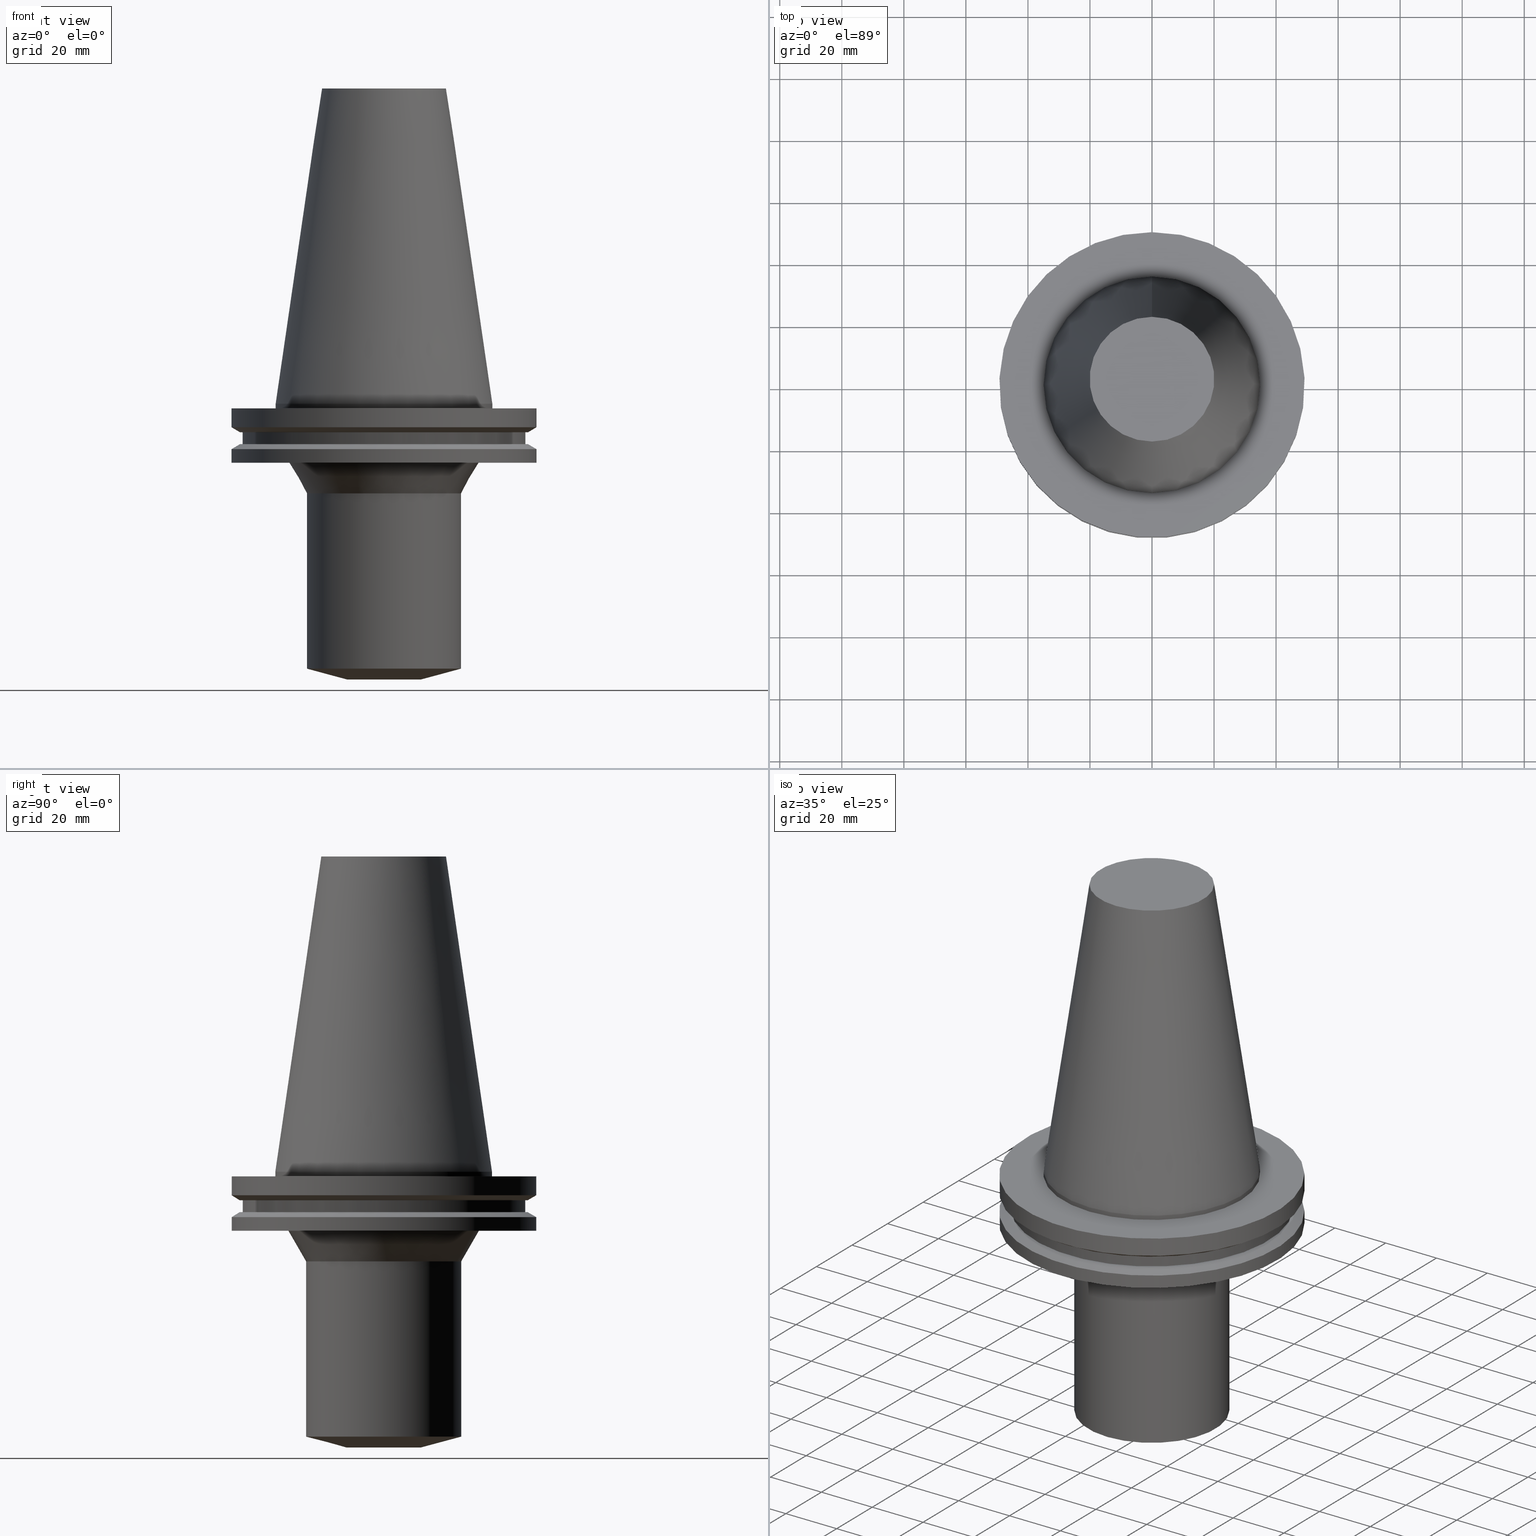
[diagram: canonical four-view strip — front | top / right | iso, engineering-drawing reading convention]
A machine part, canonical four-view strip (front | top / right | iso — engineering-drawing reading convention). The complete STEP part file that produces these views, byte-faithful:
ISO-10303-21;
HEADER;
FILE_DESCRIPTION((''),'1');
FILE_NAME('V:/01_Dxf_Field-HP\X2\FF71FF6FFF8CFF9F5916\X0\2013/BIGKAISER\X2\FF76FF80FF9BFF78FF9E63B28F095206\X0\_BKUS_201803/BCV50Y-BSL/BCV50Y-BSL.750-3.5.stp','2018-03-13T06:34:36',(''),(''),'Spatial Interop R21 SP3','Kubotek KeyCreator 2011 V10.0.2 (22737)',' ');
FILE_SCHEMA(('automotive_design'));
ENDSEC;
DATA;
#1=MECHANICAL_DESIGN_GEOMETRIC_PRESENTATION_REPRESENTATION(' ',(#10,#11,#12,#13,#14,#15,#16,#17,#18,#19,#20,#21,#22,#23,#24,#25,#26,#27,#28,#29,#30,#31,#32,#33,#34,#35,#36,#37,#38,#39,#40,#41),#6);
#2=PRODUCT_DEFINITION_CONTEXT('',#42,'design');
#3=APPLICATION_PROTOCOL_DEFINITION('INTERNATIONAL STANDARD','automotive_design',1994,#42);
#4=PRODUCT_CATEGORY_RELATIONSHIP('NONE','NONE',#43,#44);
#5=SHAPE_DEFINITION_REPRESENTATION(#45,#46);
#6= (GEOMETRIC_REPRESENTATION_CONTEXT(3)GLOBAL_UNCERTAINTY_ASSIGNED_CONTEXT((#49))GLOBAL_UNIT_ASSIGNED_CONTEXT((#51,#52,#53))REPRESENTATION_CONTEXT('NONE','WORKSPACE'));
#10=STYLED_ITEM('',(#55,#56),#57);
#11=STYLED_ITEM('',(#58),#59);
#12=STYLED_ITEM('',(#60),#61);
#13=STYLED_ITEM('',(#62,#63),#64);
#14=STYLED_ITEM('',(#65),#66);
#15=STYLED_ITEM('',(#67),#68);
#16=STYLED_ITEM('',(#69),#70);
#17=STYLED_ITEM('',(#71,#72),#73);
#18=STYLED_ITEM('',(#74,#75),#76);
#19=STYLED_ITEM('',(#77),#78);
#20=STYLED_ITEM('',(#79),#80);
#21=STYLED_ITEM('',(#81,#82),#83);
#22=STYLED_ITEM('',(#84,#85),#86);
#23=STYLED_ITEM('',(#87,#88),#89);
#24=STYLED_ITEM('',(#90,#91),#92);
#25=STYLED_ITEM('',(#93,#94),#95);
#26=STYLED_ITEM('',(#96,#97),#98);
#27=STYLED_ITEM('',(#99),#100);
#28=STYLED_ITEM('',(#101),#102);
#29=STYLED_ITEM('',(#103,#104),#105);
#30=STYLED_ITEM('',(#106,#107),#108);
#31=STYLED_ITEM('',(#109,#110),#111);
#32=STYLED_ITEM('',(#112,#113),#114);
#33=STYLED_ITEM('',(#115,#116),#117);
#34=STYLED_ITEM('',(#118,#119),#120);
#35=STYLED_ITEM('',(#121),#122);
#36=STYLED_ITEM('',(#123),#124);
#37=STYLED_ITEM('',(#125,#126),#127);
#38=STYLED_ITEM('',(#128),#129);
#39=STYLED_ITEM('',(#130),#131);
#40=STYLED_ITEM('',(#132),#133);
#41=STYLED_ITEM('',(#134),#135);
#42=APPLICATION_CONTEXT(' ');
#43=PRODUCT_CATEGORY('part','NONE');
#44=PRODUCT_RELATED_PRODUCT_CATEGORY('detail',' ',(#136));
#45=PRODUCT_DEFINITION_SHAPE('NONE','NONE',#137);
#46=ADVANCED_BREP_SHAPE_REPRESENTATION('Unnamed[1]',(#86,#138),#6);
#49=UNCERTAINTY_MEASURE_WITH_UNIT(LENGTH_MEASURE(1.0E-006),#51,'','');
#51= (CONVERSION_BASED_UNIT('MILLIMETRE',#141)LENGTH_UNIT()NAMED_UNIT(#144));
#52= (NAMED_UNIT(#146)PLANE_ANGLE_UNIT()SI_UNIT($,.RADIAN.));
#53= (NAMED_UNIT(#146)SOLID_ANGLE_UNIT()SI_UNIT($,.STERADIAN.));
#55=PRESENTATION_STYLE_ASSIGNMENT((#152));
#56=PRESENTATION_STYLE_ASSIGNMENT((#153));
#57=ADVANCED_FACE('Unnamed[1]',(#154,#155),#156,.T.);
#58=PRESENTATION_STYLE_ASSIGNMENT((#157));
#59=EDGE_CURVE('Unnamed[1]',#158,#158,#159,.T.);
#60=PRESENTATION_STYLE_ASSIGNMENT((#160));
#61=EDGE_CURVE('Unnamed[1]',#161,#161,#162,.T.);
#62=PRESENTATION_STYLE_ASSIGNMENT((#163));
#63=PRESENTATION_STYLE_ASSIGNMENT((#164));
#64=ADVANCED_FACE('Unnamed[1]',(#165,#166),#167,.T.);
#65=PRESENTATION_STYLE_ASSIGNMENT((#168));
#66=EDGE_CURVE('Unnamed[1]',#169,#169,#170,.T.);
#67=PRESENTATION_STYLE_ASSIGNMENT((#171));
#68=EDGE_CURVE('Unnamed[1]',#172,#172,#173,.T.);
#69=PRESENTATION_STYLE_ASSIGNMENT((#174));
#70=EDGE_CURVE('Unnamed[1]',#175,#175,#176,.T.);
#71=PRESENTATION_STYLE_ASSIGNMENT((#177));
#72=PRESENTATION_STYLE_ASSIGNMENT((#178));
#73=ADVANCED_FACE('Unnamed[1]',(#179,#180),#181,.T.);
#74=PRESENTATION_STYLE_ASSIGNMENT((#182));
#75=PRESENTATION_STYLE_ASSIGNMENT((#183));
#76=ADVANCED_FACE('Unnamed[1]',(#184),#185,.T.);
#77=PRESENTATION_STYLE_ASSIGNMENT((#186));
#78=EDGE_CURVE('Unnamed[1]',#187,#187,#188,.T.);
#79=PRESENTATION_STYLE_ASSIGNMENT((#189));
#80=EDGE_CURVE('Unnamed[1]',#190,#190,#191,.T.);
#81=PRESENTATION_STYLE_ASSIGNMENT((#192));
#82=PRESENTATION_STYLE_ASSIGNMENT((#193));
#83=ADVANCED_FACE('Unnamed[1]',(#194,#195),#196,.T.);
#84=PRESENTATION_STYLE_ASSIGNMENT((#197));
#85=PRESENTATION_STYLE_ASSIGNMENT((#198));
#86=MANIFOLD_SOLID_BREP('Unnamed[1]',#199);
#87=PRESENTATION_STYLE_ASSIGNMENT((#200));
#88=PRESENTATION_STYLE_ASSIGNMENT((#201));
#89=ADVANCED_FACE('Unnamed[1]',(#202,#203),#204,.T.);
#90=PRESENTATION_STYLE_ASSIGNMENT((#205));
#91=PRESENTATION_STYLE_ASSIGNMENT((#206));
#92=ADVANCED_FACE('Unnamed[1]',(#207,#208),#209,.T.);
#93=PRESENTATION_STYLE_ASSIGNMENT((#210));
#94=PRESENTATION_STYLE_ASSIGNMENT((#211));
#95=ADVANCED_FACE('Unnamed[1]',(#212,#213),#214,.T.);
#96=PRESENTATION_STYLE_ASSIGNMENT((#215));
#97=PRESENTATION_STYLE_ASSIGNMENT((#216));
#98=ADVANCED_FACE('Unnamed[1]',(#217,#218),#219,.T.);
#99=PRESENTATION_STYLE_ASSIGNMENT((#220));
#100=EDGE_CURVE('Unnamed[1]',#221,#221,#222,.T.);
#101=PRESENTATION_STYLE_ASSIGNMENT((#223));
#102=EDGE_CURVE('Unnamed[1]',#224,#224,#225,.T.);
#103=PRESENTATION_STYLE_ASSIGNMENT((#226));
#104=PRESENTATION_STYLE_ASSIGNMENT((#227));
#105=ADVANCED_FACE('Unnamed[1]',(#228,#229),#230,.T.);
#106=PRESENTATION_STYLE_ASSIGNMENT((#231));
#107=PRESENTATION_STYLE_ASSIGNMENT((#232));
#108=ADVANCED_FACE('Unnamed[1]',(#233,#234),#235,.T.);
#109=PRESENTATION_STYLE_ASSIGNMENT((#236));
#110=PRESENTATION_STYLE_ASSIGNMENT((#237));
#111=ADVANCED_FACE('Unnamed[1]',(#238,#239),#240,.T.);
#112=PRESENTATION_STYLE_ASSIGNMENT((#241));
#113=PRESENTATION_STYLE_ASSIGNMENT((#242));
#114=ADVANCED_FACE('Unnamed[1]',(#243,#244),#245,.T.);
#115=PRESENTATION_STYLE_ASSIGNMENT((#246));
#116=PRESENTATION_STYLE_ASSIGNMENT((#247));
#117=ADVANCED_FACE('Unnamed[1]',(#248,#249),#250,.T.);
#118=PRESENTATION_STYLE_ASSIGNMENT((#251));
#119=PRESENTATION_STYLE_ASSIGNMENT((#252));
#120=ADVANCED_FACE('Unnamed[1]',(#253,#254),#255,.T.);
#121=PRESENTATION_STYLE_ASSIGNMENT((#256));
#122=EDGE_CURVE('Unnamed[1]',#257,#257,#258,.T.);
#123=PRESENTATION_STYLE_ASSIGNMENT((#259));
#124=EDGE_CURVE('Unnamed[1]',#260,#260,#261,.T.);
#125=PRESENTATION_STYLE_ASSIGNMENT((#262));
#126=PRESENTATION_STYLE_ASSIGNMENT((#263));
#127=ADVANCED_FACE('Unnamed[1]',(#264),#265,.T.);
#128=PRESENTATION_STYLE_ASSIGNMENT((#266));
#129=EDGE_CURVE('Unnamed[1]',#267,#267,#268,.T.);
#130=PRESENTATION_STYLE_ASSIGNMENT((#269));
#131=EDGE_CURVE('Unnamed[1]',#270,#270,#271,.T.);
#132=PRESENTATION_STYLE_ASSIGNMENT((#272));
#133=EDGE_CURVE('Unnamed[1]',#273,#273,#274,.T.);
#134=PRESENTATION_STYLE_ASSIGNMENT((#275));
#135=EDGE_CURVE('Unnamed[1]',#276,#276,#277,.T.);
#136=PRODUCT('Unnamed[1]','Unnamed[1]','PART-Unnamed[1]-DESC',(#278));
#137=PRODUCT_DEFINITION('NONE','NONE',#279,#2);
#138=AXIS2_PLACEMENT_3D('',#280,#281,#282);
#141=LENGTH_MEASURE_WITH_UNIT(LENGTH_MEASURE(1.0),#283);
#144=DIMENSIONAL_EXPONENTS(1.0,0.0,0.0,0.0,0.0,0.0,0.0);
#146=DIMENSIONAL_EXPONENTS(0.0,0.0,0.0,0.0,0.0,0.0,0.0);
#152=SURFACE_STYLE_USAGE(.BOTH.,#284);
#153=CURVE_STYLE('',#285,POSITIVE_LENGTH_MEASURE(1000.0),#286);
#154=FACE_BOUND('',#287,.T.);
#155=FACE_BOUND('',#288,.T.);
#156=CONICAL_SURFACE('',#289,18.4999999999988,1.30899693899575);
#157=CURVE_STYLE('',#290,POSITIVE_LENGTH_MEASURE(1000.0),#291);
#158=VERTEX_POINT('',#292);
#159=CIRCLE('',#293,20.1083333297217);
#160=CURVE_STYLE('',#294,POSITIVE_LENGTH_MEASURE(1000.0),#295);
#161=VERTEX_POINT('',#296);
#162=CIRCLE('',#297,49.2125);
#163=SURFACE_STYLE_USAGE(.BOTH.,#298);
#164=CURVE_STYLE('',#299,POSITIVE_LENGTH_MEASURE(1000.0),#300);
#165=FACE_BOUND('',#301,.T.);
#166=FACE_OUTER_BOUND('',#302,.T.);
#167=PLANE('',#303);
#168=CURVE_STYLE('',#304,POSITIVE_LENGTH_MEASURE(1000.0),#305);
#169=VERTEX_POINT('',#306);
#170=CIRCLE('',#307,46.43053755);
#171=CURVE_STYLE('',#308,POSITIVE_LENGTH_MEASURE(1000.0),#309);
#172=VERTEX_POINT('',#310);
#173=CIRCLE('',#311,45.645);
#174=CURVE_STYLE('',#312,POSITIVE_LENGTH_MEASURE(1000.0),#313);
#175=VERTEX_POINT('',#314);
#176=CIRCLE('',#315,46.43053755);
#177=SURFACE_STYLE_USAGE(.BOTH.,#316);
#178=CURVE_STYLE('',#317,POSITIVE_LENGTH_MEASURE(1000.0),#318);
#179=FACE_BOUND('',#319,.T.);
#180=FACE_BOUND('',#320,.T.);
#181=CONICAL_SURFACE('',#321,27.5166666648609,0.144812498273746);
#182=SURFACE_STYLE_USAGE(.BOTH.,#322);
#183=CURVE_STYLE('',#323,POSITIVE_LENGTH_MEASURE(1000.0),#324);
#184=FACE_OUTER_BOUND('',#325,.T.);
#185=PLANE('',#326);
#186=CURVE_STYLE('',#327,POSITIVE_LENGTH_MEASURE(1000.0),#328);
#187=VERTEX_POINT('',#329);
#188=CIRCLE('',#330,49.2125);
#189=CURVE_STYLE('',#331,POSITIVE_LENGTH_MEASURE(1000.0),#332);
#190=VERTEX_POINT('',#333);
#191=CIRCLE('',#334,11.9999999999879);
#192=SURFACE_STYLE_USAGE(.BOTH.,#335);
#193=CURVE_STYLE('',#336,POSITIVE_LENGTH_MEASURE(1000.0),#337);
#194=FACE_BOUND('',#338,.T.);
#195=FACE_BOUND('',#339,.T.);
#196=CYLINDRICAL_SURFACE('',#340,45.645);
#197=SURFACE_STYLE_USAGE(.BOTH.,#341);
#198=CURVE_STYLE('',#342,POSITIVE_LENGTH_MEASURE(1000.0),#343);
#199=CLOSED_SHELL('',(#76,#73,#117,#89,#95,#120,#64,#83,#105,#111,#92,#98,#108,#114,#57,#127));
#200=SURFACE_STYLE_USAGE(.BOTH.,#344);
#201=CURVE_STYLE('',#345,POSITIVE_LENGTH_MEASURE(1000.0),#346);
#202=FACE_OUTER_BOUND('',#347,.T.);
#203=FACE_BOUND('',#348,.T.);
#204=PLANE('',#349);
#205=SURFACE_STYLE_USAGE(.BOTH.,#350);
#206=CURVE_STYLE('',#351,POSITIVE_LENGTH_MEASURE(1000.0),#352);
#207=FACE_BOUND('',#353,.T.);
#208=FACE_BOUND('',#354,.T.);
#209=CYLINDRICAL_SURFACE('',#355,49.2125);
#210=SURFACE_STYLE_USAGE(.BOTH.,#356);
#211=CURVE_STYLE('',#357,POSITIVE_LENGTH_MEASURE(1000.0),#358);
#212=FACE_BOUND('',#359,.T.);
#213=FACE_BOUND('',#360,.T.);
#214=CYLINDRICAL_SURFACE('',#361,49.2125);
#215=SURFACE_STYLE_USAGE(.BOTH.,#362);
#216=CURVE_STYLE('',#363,POSITIVE_LENGTH_MEASURE(1000.0),#364);
#217=FACE_BOUND('',#365,.T.);
#218=FACE_OUTER_BOUND('',#366,.T.);
#219=PLANE('',#367);
#220=CURVE_STYLE('',#368,POSITIVE_LENGTH_MEASURE(1000.0),#369);
#221=VERTEX_POINT('',#370);
#222=CIRCLE('',#371,34.925);
#223=CURVE_STYLE('',#372,POSITIVE_LENGTH_MEASURE(1000.0),#373);
#224=VERTEX_POINT('',#374);
#225=CIRCLE('',#375,34.925);
#226=SURFACE_STYLE_USAGE(.BOTH.,#376);
#227=CURVE_STYLE('',#377,POSITIVE_LENGTH_MEASURE(1000.0),#378);
#228=FACE_OUTER_BOUND('',#379,.T.);
#229=FACE_BOUND('',#380,.T.);
#230=PLANE('',#381);
#231=SURFACE_STYLE_USAGE(.BOTH.,#382);
#232=CURVE_STYLE('',#383,POSITIVE_LENGTH_MEASURE(1000.0),#384);
#233=FACE_BOUND('',#385,.T.);
#234=FACE_BOUND('',#386,.T.);
#235=CONICAL_SURFACE('',#387,27.8434500757615,0.523598775598437);
#236=SURFACE_STYLE_USAGE(.BOTH.,#388);
#237=CURVE_STYLE('',#389,POSITIVE_LENGTH_MEASURE(1000.0),#390);
#238=FACE_BOUND('',#391,.T.);
#239=FACE_BOUND('',#392,.T.);
#240=CONICAL_SURFACE('',#393,47.821518775,1.04719755103023);
#241=SURFACE_STYLE_USAGE(.BOTH.,#394);
#242=CURVE_STYLE('',#395,POSITIVE_LENGTH_MEASURE(1000.0),#396);
#243=FACE_BOUND('',#397,.T.);
#244=FACE_BOUND('',#398,.T.);
#245=CYLINDRICAL_SURFACE('',#399,25.000000000009);
#246=SURFACE_STYLE_USAGE(.BOTH.,#400);
#247=CURVE_STYLE('',#401,POSITIVE_LENGTH_MEASURE(1000.0),#402);
#248=FACE_BOUND('',#403,.T.);
#249=FACE_BOUND('',#404,.T.);
#250=CYLINDRICAL_SURFACE('',#405,34.925);
#251=SURFACE_STYLE_USAGE(.BOTH.,#406);
#252=CURVE_STYLE('',#407,POSITIVE_LENGTH_MEASURE(1000.0),#408);
#253=FACE_BOUND('',#409,.T.);
#254=FACE_BOUND('',#410,.T.);
#255=CONICAL_SURFACE('',#411,47.821518775,1.04719755103024);
#256=CURVE_STYLE('',#412,POSITIVE_LENGTH_MEASURE(1000.0),#413);
#257=VERTEX_POINT('',#414);
#258=CIRCLE('',#415,49.2125);
#259=CURVE_STYLE('',#416,POSITIVE_LENGTH_MEASURE(1000.0),#417);
#260=VERTEX_POINT('',#418);
#261=CIRCLE('',#419,30.6869001515146);
#262=SURFACE_STYLE_USAGE(.BOTH.,#420);
#263=CURVE_STYLE('',#421,POSITIVE_LENGTH_MEASURE(1000.0),#422);
#264=FACE_OUTER_BOUND('',#423,.T.);
#265=PLANE('',#424);
#266=CURVE_STYLE('',#425,POSITIVE_LENGTH_MEASURE(1000.0),#426);
#267=VERTEX_POINT('',#427);
#268=CIRCLE('',#428,49.2125);
#269=CURVE_STYLE('',#429,POSITIVE_LENGTH_MEASURE(1000.0),#430);
#270=VERTEX_POINT('',#431);
#271=CIRCLE('',#432,25.0000000000083);
#272=CURVE_STYLE('',#433,POSITIVE_LENGTH_MEASURE(1000.0),#434);
#273=VERTEX_POINT('',#435);
#274=CIRCLE('',#436,25.0000000000097);
#275=CURVE_STYLE('',#437,POSITIVE_LENGTH_MEASURE(1000.0),#438);
#276=VERTEX_POINT('',#439);
#277=CIRCLE('',#440,45.645);
#278=PRODUCT_CONTEXT('',#42,'mechanical');
#279=PRODUCT_DEFINITION_FORMATION_WITH_SPECIFIED_SOURCE(' ','NONE',#136,.NOT_KNOWN.);
#280=CARTESIAN_POINT('',(0.0,0.0,0.0));
#281=DIRECTION('',(0.0,0.0,1.0));
#282=DIRECTION('',(1.0,0.0,0.0));
#283= (NAMED_UNIT(#144)LENGTH_UNIT()SI_UNIT(.MILLI.,.METRE.));
#284=SURFACE_SIDE_STYLE('',(#442));
#285=DRAUGHTING_PRE_DEFINED_CURVE_FONT('continuous');
#286=COLOUR_RGB('',0.0,1.0,0.0);
#287=EDGE_LOOP('',(#443));
#288=EDGE_LOOP('',(#444));
#289=AXIS2_PLACEMENT_3D('',#445,#446,#447);
#290=DRAUGHTING_PRE_DEFINED_CURVE_FONT('continuous');
#291=COLOUR_RGB('',0.0,1.0,0.0);
#292=CARTESIAN_POINT('',(-6.22120573966855E-015,20.1083333297217,101.6));
#293=AXIS2_PLACEMENT_3D('',#448,#449,#450);
#294=DRAUGHTING_PRE_DEFINED_CURVE_FONT('continuous');
#295=COLOUR_RGB('',0.0,1.0,0.0);
#296=CARTESIAN_POINT('',(4.64988177918915E-016,49.2125,-7.59383323));
#297=AXIS2_PLACEMENT_3D('',#451,#452,#453);
#298=SURFACE_SIDE_STYLE('',(#454));
#299=DRAUGHTING_PRE_DEFINED_CURVE_FONT('continuous');
#300=COLOUR_RGB('',0.0,1.0,0.0);
#301=EDGE_LOOP('',(#455));
#302=EDGE_LOOP('',(#456));
#303=AXIS2_PLACEMENT_3D('',#457,#458,#459);
#304=DRAUGHTING_PRE_DEFINED_CURVE_FONT('continuous');
#305=COLOUR_RGB('',0.0,1.0,0.0);
#306=CARTESIAN_POINT('',(5.63337527607782E-016,46.43053755,-9.2));
#307=AXIS2_PLACEMENT_3D('',#460,#461,#462);
#308=DRAUGHTING_PRE_DEFINED_CURVE_FONT('continuous');
#309=COLOUR_RGB('',0.0,1.0,0.0);
#310=CARTESIAN_POINT('',(7.98469713044073E-016,45.645,-13.04));
#311=AXIS2_PLACEMENT_3D('',#463,#464,#465);
#312=DRAUGHTING_PRE_DEFINED_CURVE_FONT('continuous');
#313=COLOUR_RGB('',0.0,1.0,0.0);
#314=CARTESIAN_POINT('',(7.98469713044073E-016,46.43053755,-13.04));
#315=AXIS2_PLACEMENT_3D('',#466,#467,#468);
#316=SURFACE_SIDE_STYLE('',(#469));
#317=DRAUGHTING_PRE_DEFINED_CURVE_FONT('continuous');
#318=COLOUR_RGB('',0.0,1.0,0.0);
#319=EDGE_LOOP('',(#470));
#320=EDGE_LOOP('',(#471));
#321=AXIS2_PLACEMENT_3D('',#472,#473,#474);
#322=SURFACE_SIDE_STYLE('',(#475));
#323=DRAUGHTING_PRE_DEFINED_CURVE_FONT('continuous');
#324=COLOUR_RGB('',0.0,1.0,0.0);
#325=EDGE_LOOP('',(#476));
#326=AXIS2_PLACEMENT_3D('',#477,#478,#479);
#327=DRAUGHTING_PRE_DEFINED_CURVE_FONT('continuous');
#328=COLOUR_RGB('',0.0,1.0,0.0);
#329=CARTESIAN_POINT('',(9.18485099360509E-017,49.2125,-1.49999999999999));
#330=AXIS2_PLACEMENT_3D('',#480,#481,#482);
#331=DRAUGHTING_PRE_DEFINED_CURVE_FONT('continuous');
#332=COLOUR_RGB('',0.0,1.0,0.0);
#333=CARTESIAN_POINT('',(5.44355502220999E-015,11.999999999988,-88.9000000000001));
#334=AXIS2_PLACEMENT_3D('',#483,#484,#485);
#335=SURFACE_SIDE_STYLE('',(#486));
#336=DRAUGHTING_PRE_DEFINED_CURVE_FONT('continuous');
#337=COLOUR_RGB('',0.0,1.0,0.0);
#338=EDGE_LOOP('',(#487));
#339=EDGE_LOOP('',(#488));
#340=AXIS2_PLACEMENT_3D('',#489,#490,#491);
#341=SURFACE_SIDE_STYLE('',(#492));
#342=DRAUGHTING_PRE_DEFINED_CURVE_FONT('continuous');
#343=COLOUR_RGB('',0.0,1.0,0.0);
#344=SURFACE_SIDE_STYLE('',(#493));
#345=DRAUGHTING_PRE_DEFINED_CURVE_FONT('continuous');
#346=COLOUR_RGB('',0.0,1.0,0.0);
#347=EDGE_LOOP('',(#494));
#348=EDGE_LOOP('',(#495));
#349=AXIS2_PLACEMENT_3D('',#496,#497,#498);
#350=SURFACE_SIDE_STYLE('',(#499));
#351=DRAUGHTING_PRE_DEFINED_CURVE_FONT('continuous');
#352=COLOUR_RGB('',0.0,1.0,0.0);
#353=EDGE_LOOP('',(#500));
#354=EDGE_LOOP('',(#501));
#355=AXIS2_PLACEMENT_3D('',#502,#503,#504);
#356=SURFACE_SIDE_STYLE('',(#505));
#357=DRAUGHTING_PRE_DEFINED_CURVE_FONT('continuous');
#358=COLOUR_RGB('',0.0,1.0,0.0);
#359=EDGE_LOOP('',(#506));
#360=EDGE_LOOP('',(#507));
#361=AXIS2_PLACEMENT_3D('',#508,#509,#510);
#362=SURFACE_SIDE_STYLE('',(#511));
#363=DRAUGHTING_PRE_DEFINED_CURVE_FONT('continuous');
#364=COLOUR_RGB('',0.0,1.0,0.0);
#365=EDGE_LOOP('',(#512));
#366=EDGE_LOOP('',(#513));
#367=AXIS2_PLACEMENT_3D('',#514,#515,#516);
#368=DRAUGHTING_PRE_DEFINED_CURVE_FONT('continuous');
#369=COLOUR_RGB('',0.0,1.0,0.0);
#370=CARTESIAN_POINT('',(-4.30483861169435E-031,34.925,4.27707894602213E-015));
#371=AXIS2_PLACEMENT_3D('',#517,#518,#519);
#372=DRAUGHTING_PRE_DEFINED_CURVE_FONT('continuous');
#373=COLOUR_RGB('',0.0,1.0,0.0);
#374=CARTESIAN_POINT('',(9.18485099360511E-017,34.925,-1.5));
#375=AXIS2_PLACEMENT_3D('',#520,#521,#522);
#376=SURFACE_SIDE_STYLE('',(#523));
#377=DRAUGHTING_PRE_DEFINED_CURVE_FONT('continuous');
#378=COLOUR_RGB('',0.0,1.0,0.0);
#379=EDGE_LOOP('',(#524));
#380=EDGE_LOOP('',(#525));
#381=AXIS2_PLACEMENT_3D('',#526,#527,#528);
#382=SURFACE_SIDE_STYLE('',(#529));
#383=DRAUGHTING_PRE_DEFINED_CURVE_FONT('continuous');
#384=COLOUR_RGB('',0.0,1.0,0.0);
#385=EDGE_LOOP('',(#530));
#386=EDGE_LOOP('',(#531));
#387=AXIS2_PLACEMENT_3D('',#532,#533,#534);
#388=SURFACE_SIDE_STYLE('',(#535));
#389=DRAUGHTING_PRE_DEFINED_CURVE_FONT('continuous');
#390=COLOUR_RGB('',0.0,1.0,0.0);
#391=EDGE_LOOP('',(#536));
#392=EDGE_LOOP('',(#537));
#393=AXIS2_PLACEMENT_3D('',#538,#539,#540);
#394=SURFACE_SIDE_STYLE('',(#541));
#395=DRAUGHTING_PRE_DEFINED_CURVE_FONT('continuous');
#396=COLOUR_RGB('',0.0,1.0,0.0);
#397=EDGE_LOOP('',(#542));
#398=EDGE_LOOP('',(#543));
#399=AXIS2_PLACEMENT_3D('',#544,#545,#546);
#400=SURFACE_SIDE_STYLE('',(#547));
#401=DRAUGHTING_PRE_DEFINED_CURVE_FONT('continuous');
#402=COLOUR_RGB('',0.0,1.0,0.0);
#403=EDGE_LOOP('',(#548));
#404=EDGE_LOOP('',(#549));
#405=AXIS2_PLACEMENT_3D('',#550,#551,#552);
#406=SURFACE_SIDE_STYLE('',(#553));
#407=DRAUGHTING_PRE_DEFINED_CURVE_FONT('continuous');
#408=COLOUR_RGB('',0.0,1.0,0.0);
#409=EDGE_LOOP('',(#554));
#410=EDGE_LOOP('',(#555));
#411=AXIS2_PLACEMENT_3D('',#556,#557,#558);
#412=DRAUGHTING_PRE_DEFINED_CURVE_FONT('continuous');
#413=COLOUR_RGB('',0.0,1.0,0.0);
#414=CARTESIAN_POINT('',(8.96819062732941E-016,49.2125,-14.64616677));
#415=AXIS2_PLACEMENT_3D('',#559,#560,#561);
#416=DRAUGHTING_PRE_DEFINED_CURVE_FONT('continuous');
#417=COLOUR_RGB('',0.0,1.0,0.0);
#418=CARTESIAN_POINT('',(1.16647607618786E-015,30.6869001515146,-19.0500000000001));
#419=AXIS2_PLACEMENT_3D('',#562,#563,#564);
#420=SURFACE_SIDE_STYLE('',(#565));
#421=DRAUGHTING_PRE_DEFINED_CURVE_FONT('continuous');
#422=COLOUR_RGB('',0.0,1.0,0.0);
#423=EDGE_LOOP('',(#566));
#424=AXIS2_PLACEMENT_3D('',#567,#568,#569);
#425=DRAUGHTING_PRE_DEFINED_CURVE_FONT('continuous');
#426=COLOUR_RGB('',0.0,1.0,0.0);
#427=CARTESIAN_POINT('',(1.16647607618785E-015,49.2125,-19.05));
#428=AXIS2_PLACEMENT_3D('',#570,#571,#572);
#429=DRAUGHTING_PRE_DEFINED_CURVE_FONT('continuous');
#430=COLOUR_RGB('',0.0,1.0,0.0);
#431=CARTESIAN_POINT('',(1.76961462476652E-015,25.0000000000084,-28.899999999977));
#432=AXIS2_PLACEMENT_3D('',#573,#574,#575);
#433=DRAUGHTING_PRE_DEFINED_CURVE_FONT('continuous');
#434=COLOUR_RGB('',0.0,1.0,0.0);
#435=CARTESIAN_POINT('',(5.23026199366046E-015,25.0000000000097,-85.4166604983898));
#436=AXIS2_PLACEMENT_3D('',#576,#577,#578);
#437=DRAUGHTING_PRE_DEFINED_CURVE_FONT('continuous');
#438=COLOUR_RGB('',0.0,1.0,0.0);
#439=CARTESIAN_POINT('',(5.63337527607782E-016,45.645,-9.2));
#440=AXIS2_PLACEMENT_3D('',#579,#580,#581);
#442=SURFACE_STYLE_FILL_AREA(#582);
#443=ORIENTED_EDGE('',*,*,#80,.F.);
#444=ORIENTED_EDGE('',*,*,#133,.T.);
#445=CARTESIAN_POINT('',(5.33690850793523E-015,1.06738170158704E-014,-87.1583302491949));
#446=DIRECTION('',(-6.12323399573677E-017,-1.22464679914735E-016,1.0));
#447=DIRECTION('',(-1.23259516440783E-032,1.0,1.22464679914735E-016));
#448=CARTESIAN_POINT('',(-6.22120573966855E-015,-1.24424114793371E-014,101.6));
#449=DIRECTION('',(6.12323399573676E-017,1.22464679914735E-016,-1.0));
#450=DIRECTION('',(-1.23259516440783E-032,1.0,1.22464679914735E-016));
#451=CARTESIAN_POINT('',(4.64988177918915E-016,9.29976355837831E-016,-7.59383323));
#452=DIRECTION('',(6.12323399573677E-017,1.22464679914735E-016,-1.0));
#453=DIRECTION('',(-1.23259516440783E-032,1.0,1.22464679914735E-016));
#454=SURFACE_STYLE_FILL_AREA(#583);
#455=ORIENTED_EDGE('',*,*,#135,.F.);
#456=ORIENTED_EDGE('',*,*,#66,.T.);
#457=CARTESIAN_POINT('',(5.63337527607782E-016,46.037768775,-9.2));
#458=DIRECTION('',(6.12323399573677E-017,1.22464679914735E-016,-1.0));
#459=DIRECTION('',(-1.23259516440783E-032,1.0,1.22464679914735E-016));
#460=CARTESIAN_POINT('',(5.63337527607783E-016,1.12667505521557E-015,-9.2));
#461=DIRECTION('',(6.12323399573677E-017,1.22464679914735E-016,-1.0));
#462=DIRECTION('',(-1.23259516440783E-032,1.0,1.22464679914735E-016));
#463=CARTESIAN_POINT('',(7.98469713044074E-016,1.59693942608815E-015,-13.04));
#464=DIRECTION('',(6.12323399573677E-017,1.22464679914735E-016,-1.0));
#465=DIRECTION('',(-1.23259516440783E-032,1.0,1.22464679914735E-016));
#466=CARTESIAN_POINT('',(7.98469713044074E-016,1.59693942608815E-015,-13.04));
#467=DIRECTION('',(6.12323399573677E-017,1.22464679914735E-016,-1.0));
#468=DIRECTION('',(-1.23259516440783E-032,1.0,1.22464679914735E-016));
#469=SURFACE_STYLE_FILL_AREA(#584);
#470=ORIENTED_EDGE('',*,*,#100,.F.);
#471=ORIENTED_EDGE('',*,*,#59,.T.);
#472=CARTESIAN_POINT('',(-3.11060286983428E-015,-6.22120573966855E-015,50.8));
#473=DIRECTION('',(6.12323399573677E-017,1.22464679914735E-016,-1.0));
#474=DIRECTION('',(-1.23259516440783E-032,1.0,1.22464679914735E-016));
#475=SURFACE_STYLE_FILL_AREA(#585);
#476=ORIENTED_EDGE('',*,*,#59,.F.);
#477=CARTESIAN_POINT('',(-6.22120573966855E-015,10.0541666648608,101.6));
#478=DIRECTION('',(-6.12323399573677E-017,-1.22464679914735E-016,1.0));
#479=DIRECTION('',(1.23259516440783E-032,-1.0,-1.22464679914735E-016));
#480=CARTESIAN_POINT('',(9.18485099360515E-017,1.83697019872103E-016,-1.5));
#481=DIRECTION('',(6.12323399573677E-017,1.22464679914735E-016,-1.0));
#482=DIRECTION('',(-1.23259516440783E-032,1.0,1.22464679914735E-016));
#483=CARTESIAN_POINT('',(5.44355502220999E-015,1.088711004442E-014,-88.9000000000001));
#484=DIRECTION('',(6.12323399573677E-017,1.22464679914735E-016,-1.0));
#485=DIRECTION('',(-1.23259516440783E-032,1.0,1.22464679914735E-016));
#486=SURFACE_STYLE_FILL_AREA(#586);
#487=ORIENTED_EDGE('',*,*,#68,.F.);
#488=ORIENTED_EDGE('',*,*,#135,.T.);
#489=CARTESIAN_POINT('',(6.80903620325929E-016,1.36180724065186E-015,-11.12));
#490=DIRECTION('',(6.12323399573677E-017,1.22464679914735E-016,-1.0));
#491=DIRECTION('',(-1.23259516440783E-032,1.0,1.22464679914735E-016));
#492=SURFACE_STYLE_FILL_AREA(#587);
#493=SURFACE_STYLE_FILL_AREA(#588);
#494=ORIENTED_EDGE('',*,*,#78,.F.);
#495=ORIENTED_EDGE('',*,*,#102,.T.);
#496=CARTESIAN_POINT('',(9.1848509936051E-017,42.06875,-1.49999999999999));
#497=DIRECTION('',(-6.12323399573677E-017,-1.22464679914735E-016,1.0));
#498=DIRECTION('',(1.23259516440783E-032,-1.0,-1.22464679914735E-016));
#499=SURFACE_STYLE_FILL_AREA(#589);
#500=ORIENTED_EDGE('',*,*,#129,.F.);
#501=ORIENTED_EDGE('',*,*,#122,.T.);
#502=CARTESIAN_POINT('',(1.0316475694604E-015,2.0632951389208E-015,-16.848083385));
#503=DIRECTION('',(6.12323399573677E-017,1.22464679914735E-016,-1.0));
#504=DIRECTION('',(-1.23259516440783E-032,1.0,1.22464679914735E-016));
#505=SURFACE_STYLE_FILL_AREA(#590);
#506=ORIENTED_EDGE('',*,*,#61,.F.);
#507=ORIENTED_EDGE('',*,*,#78,.T.);
#508=CARTESIAN_POINT('',(2.78418343927483E-016,5.56836687854967E-016,-4.546916615));
#509=DIRECTION('',(6.12323399573677E-017,1.22464679914735E-016,-1.0));
#510=DIRECTION('',(-1.23259516440783E-032,1.0,1.22464679914735E-016));
#511=SURFACE_STYLE_FILL_AREA(#591);
#512=ORIENTED_EDGE('',*,*,#124,.F.);
#513=ORIENTED_EDGE('',*,*,#129,.T.);
#514=CARTESIAN_POINT('',(1.16647607618786E-015,39.9497000757573,-19.0500000000001));
#515=DIRECTION('',(6.12323399573677E-017,6.45098048287277E-015,-1.0));
#516=DIRECTION('',(-3.99835782716378E-031,1.0,6.45098048287277E-015));
#517=CARTESIAN_POINT('',(0.0,0.0,0.0));
#518=DIRECTION('',(6.12323399573677E-017,1.22464679914735E-016,-1.0));
#519=DIRECTION('',(-1.23259516440783E-032,1.0,1.22464679914735E-016));
#520=CARTESIAN_POINT('',(9.18485099360515E-017,1.83697019872103E-016,-1.5));
#521=DIRECTION('',(6.12323399573677E-017,1.22464679914735E-016,-1.0));
#522=DIRECTION('',(-1.23259516440783E-032,1.0,1.22464679914735E-016));
#523=SURFACE_STYLE_FILL_AREA(#592);
#524=ORIENTED_EDGE('',*,*,#70,.F.);
#525=ORIENTED_EDGE('',*,*,#68,.T.);
#526=CARTESIAN_POINT('',(7.98469713044073E-016,46.037768775,-13.04));
#527=DIRECTION('',(-6.12323399573677E-017,-1.22464679914735E-016,1.0));
#528=DIRECTION('',(1.23259516440783E-032,-1.0,-1.22464679914735E-016));
#529=SURFACE_STYLE_FILL_AREA(#593);
#530=ORIENTED_EDGE('',*,*,#131,.F.);
#531=ORIENTED_EDGE('',*,*,#124,.T.);
#532=CARTESIAN_POINT('',(1.46804535047719E-015,2.93609070095438E-015,-23.9749999999886));
#533=DIRECTION('',(-6.12323399573677E-017,-1.22464679914735E-016,1.0));
#534=DIRECTION('',(-1.23259516440783E-032,1.0,1.22464679914735E-016));
#535=SURFACE_STYLE_FILL_AREA(#594);
#536=ORIENTED_EDGE('',*,*,#122,.F.);
#537=ORIENTED_EDGE('',*,*,#70,.T.);
#538=CARTESIAN_POINT('',(8.47644387888508E-016,1.69528877577702E-015,-13.843083385));
#539=DIRECTION('',(6.12323399573677E-017,1.22464679914735E-016,-1.0));
#540=DIRECTION('',(-1.23259516440783E-032,1.0,1.22464679914735E-016));
#541=SURFACE_STYLE_FILL_AREA(#595);
#542=ORIENTED_EDGE('',*,*,#133,.F.);
#543=ORIENTED_EDGE('',*,*,#131,.T.);
#544=CARTESIAN_POINT('',(3.49993830921349E-015,6.99987661842697E-015,-57.1583302491834));
#545=DIRECTION('',(6.12323399573677E-017,1.22464679914735E-016,-1.0));
#546=DIRECTION('',(-1.23259516440783E-032,1.0,1.22464679914735E-016));
#547=SURFACE_STYLE_FILL_AREA(#596);
#548=ORIENTED_EDGE('',*,*,#102,.F.);
#549=ORIENTED_EDGE('',*,*,#100,.T.);
#550=CARTESIAN_POINT('',(4.59242549680257E-017,9.18485099360515E-017,-0.75));
#551=DIRECTION('',(6.12323399573677E-017,1.22464679914735E-016,-1.0));
#552=DIRECTION('',(-1.23259516440783E-032,1.0,1.22464679914735E-016));
#553=SURFACE_STYLE_FILL_AREA(#597);
#554=ORIENTED_EDGE('',*,*,#66,.F.);
#555=ORIENTED_EDGE('',*,*,#61,.T.);
#556=CARTESIAN_POINT('',(5.14162852763349E-016,1.0283257055267E-015,-8.39691661500001));
#557=DIRECTION('',(-6.12323399573677E-017,-1.22464679914735E-016,1.0));
#558=DIRECTION('',(-1.23259516440783E-032,1.0,1.22464679914735E-016));
#559=CARTESIAN_POINT('',(8.96819062732942E-016,1.79363812546588E-015,-14.64616677));
#560=DIRECTION('',(6.12323399573677E-017,1.22464679914735E-016,-1.0));
#561=DIRECTION('',(-1.23259516440783E-032,1.0,1.22464679914735E-016));
#562=CARTESIAN_POINT('',(1.16647607618786E-015,2.33295215237572E-015,-19.0500000000001));
#563=DIRECTION('',(6.12323399573677E-017,1.22464679914735E-016,-1.0));
#564=DIRECTION('',(-1.23259516440783E-032,1.0,1.22464679914735E-016));
#565=SURFACE_STYLE_FILL_AREA(#598);
#566=ORIENTED_EDGE('',*,*,#80,.T.);
#567=CARTESIAN_POINT('',(5.44355502220999E-015,5.99999999999399,-88.9000000000001));
#568=DIRECTION('',(6.12323399573677E-017,1.22464679914735E-016,-1.0));
#569=DIRECTION('',(-1.23259516440783E-032,1.0,1.22464679914735E-016));
#570=CARTESIAN_POINT('',(1.16647607618785E-015,2.33295215237571E-015,-19.05));
#571=DIRECTION('',(6.12323399573677E-017,1.22464679914735E-016,-1.0));
#572=DIRECTION('',(-1.23259516440783E-032,1.0,1.22464679914735E-016));
#573=CARTESIAN_POINT('',(1.76961462476652E-015,3.53922924953303E-015,-28.899999999977));
#574=DIRECTION('',(6.12323399573677E-017,1.22464679914735E-016,-1.0));
#575=DIRECTION('',(-1.23259516440783E-032,1.0,1.22464679914735E-016));
#576=CARTESIAN_POINT('',(5.23026199366046E-015,1.04605239873209E-014,-85.4166604983898));
#577=DIRECTION('',(6.12323399573677E-017,1.22464679914735E-016,-1.0));
#578=DIRECTION('',(-1.23259516440783E-032,1.0,1.22464679914735E-016));
#579=CARTESIAN_POINT('',(5.63337527607783E-016,1.12667505521557E-015,-9.2));
#580=DIRECTION('',(6.12323399573677E-017,1.22464679914735E-016,-1.0));
#581=DIRECTION('',(-1.23259516440783E-032,1.0,1.22464679914735E-016));
#582=FILL_AREA_STYLE('',(#599));
#583=FILL_AREA_STYLE('',(#600));
#584=FILL_AREA_STYLE('',(#601));
#585=FILL_AREA_STYLE('',(#602));
#586=FILL_AREA_STYLE('',(#603));
#587=FILL_AREA_STYLE('',(#604));
#588=FILL_AREA_STYLE('',(#605));
#589=FILL_AREA_STYLE('',(#606));
#590=FILL_AREA_STYLE('',(#607));
#591=FILL_AREA_STYLE('',(#608));
#592=FILL_AREA_STYLE('',(#609));
#593=FILL_AREA_STYLE('',(#610));
#594=FILL_AREA_STYLE('',(#611));
#595=FILL_AREA_STYLE('',(#612));
#596=FILL_AREA_STYLE('',(#613));
#597=FILL_AREA_STYLE('',(#614));
#598=FILL_AREA_STYLE('',(#615));
#599=FILL_AREA_STYLE_COLOUR('',#616);
#600=FILL_AREA_STYLE_COLOUR('',#617);
#601=FILL_AREA_STYLE_COLOUR('',#618);
#602=FILL_AREA_STYLE_COLOUR('',#619);
#603=FILL_AREA_STYLE_COLOUR('',#620);
#604=FILL_AREA_STYLE_COLOUR('',#621);
#605=FILL_AREA_STYLE_COLOUR('',#622);
#606=FILL_AREA_STYLE_COLOUR('',#623);
#607=FILL_AREA_STYLE_COLOUR('',#624);
#608=FILL_AREA_STYLE_COLOUR('',#625);
#609=FILL_AREA_STYLE_COLOUR('',#626);
#610=FILL_AREA_STYLE_COLOUR('',#627);
#611=FILL_AREA_STYLE_COLOUR('',#628);
#612=FILL_AREA_STYLE_COLOUR('',#629);
#613=FILL_AREA_STYLE_COLOUR('',#630);
#614=FILL_AREA_STYLE_COLOUR('',#631);
#615=FILL_AREA_STYLE_COLOUR('',#632);
#616=COLOUR_RGB('',0.0,1.0,0.0);
#617=COLOUR_RGB('',0.0,1.0,0.0);
#618=COLOUR_RGB('',0.0,1.0,0.0);
#619=COLOUR_RGB('',0.0,1.0,0.0);
#620=COLOUR_RGB('',0.0,1.0,0.0);
#621=COLOUR_RGB('',0.0,1.0,0.0);
#622=COLOUR_RGB('',0.0,1.0,0.0);
#623=COLOUR_RGB('',0.0,1.0,0.0);
#624=COLOUR_RGB('',0.0,1.0,0.0);
#625=COLOUR_RGB('',0.0,1.0,0.0);
#626=COLOUR_RGB('',0.0,1.0,0.0);
#627=COLOUR_RGB('',0.0,1.0,0.0);
#628=COLOUR_RGB('',0.0,1.0,0.0);
#629=COLOUR_RGB('',0.0,1.0,0.0);
#630=COLOUR_RGB('',0.0,1.0,0.0);
#631=COLOUR_RGB('',0.0,1.0,0.0);
#632=COLOUR_RGB('',0.0,1.0,0.0);
ENDSEC;
END-ISO-10303-21;
